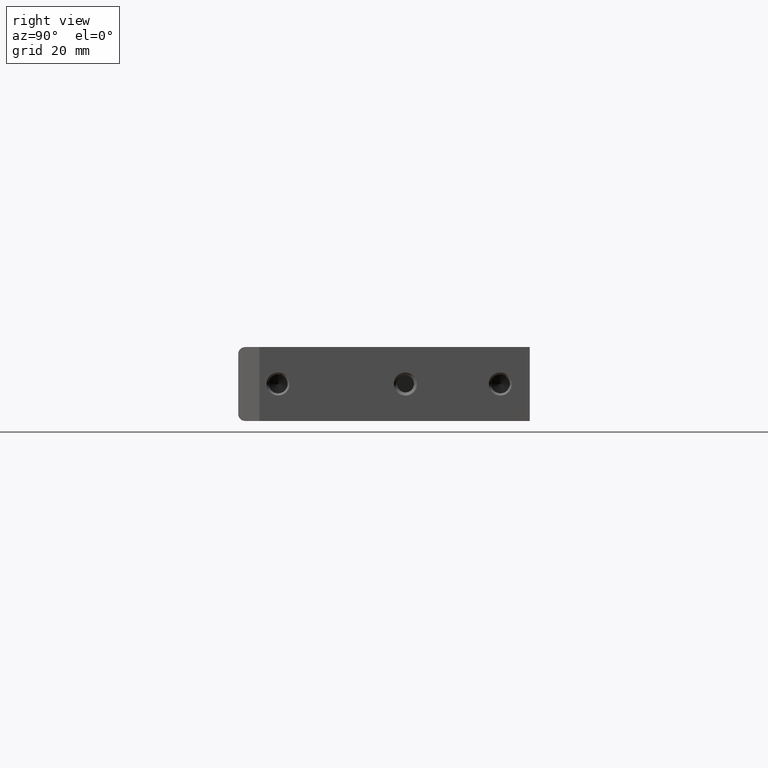
[diagram: clean part render]
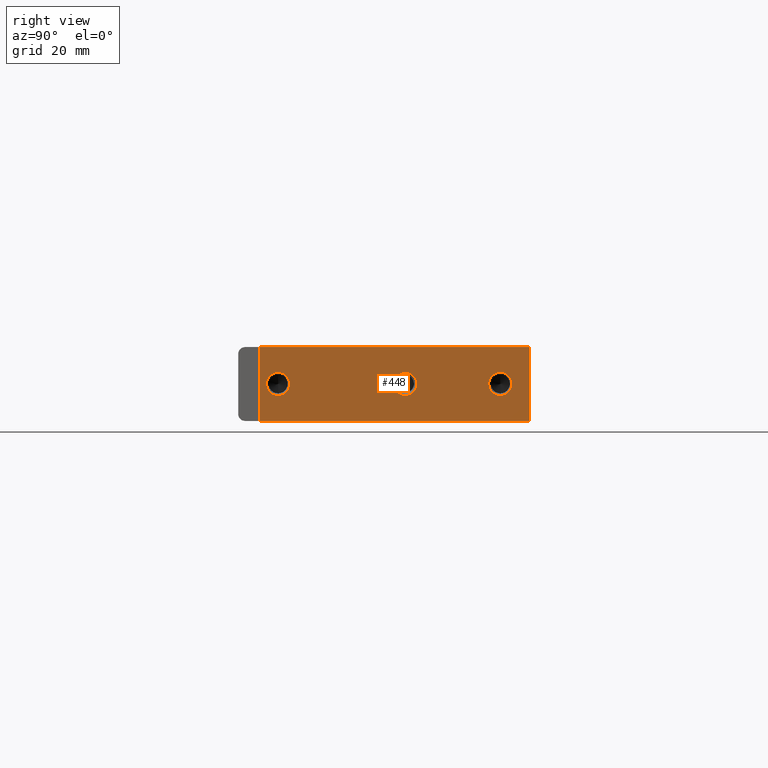
[diagram: same view with one face highlighted and labeled with its STEP entity id]
A machine part, right view. The second image highlights one B-rep face of the part: STEP entity #448.
In plain terms, the highlighted planar face has unit normal (-1, -0, 0).
Its self-contained STEP definition (entity closure, byte-faithful):
#4 = EDGE_CURVE ( 'NONE', #605, #116, #726, .T. ) ;
#12 = CARTESIAN_POINT ( 'NONE',  ( 4.469960816887839400E-016, -1.752499999999999900, 0.5000000000000000000 ) ) ;
#28 = EDGE_CURVE ( 'NONE', #937, #605, #29, .T. ) ;
#29 = LINE ( 'NONE', #12, #739 ) ;
#49 = VECTOR ( 'NONE', #679, 39.37007874015748100 ) ;
#54 = CARTESIAN_POINT ( 'NONE',  ( -2.030439682492589500E-016, 1.500000000000000200, 0.1562499999999994700 ) ) ;
#81 = ORIENTED_EDGE ( 'NONE', *, *, #269, .F. ) ;
#87 = CARTESIAN_POINT ( 'NONE',  ( 0.0000000000000000000, 1.897500000000000000, 0.5000000000000000000 ) ) ;
#94 = AXIS2_PLACEMENT_3D ( 'NONE', #473, #393, #484 ) ;
#104 = CARTESIAN_POINT ( 'NONE',  ( -2.793251185537960200E-017, 0.2179999999999996900, -0.1562500000000003900 ) ) ;
#116 = VERTEX_POINT ( 'NONE', #184 ) ;
#129 = EDGE_LOOP ( 'NONE', ( #237, #403 ) ) ;
#135 = CIRCLE ( 'NONE', #954, 0.1562500000000000000 ) ;
#148 = DIRECTION ( 'NONE',  ( -0.0000000000000000000, -0.0000000000000000000, -1.000000000000000000 ) ) ;
#149 = CARTESIAN_POINT ( 'NONE',  ( 0.0000000000000000000, 1.897500000000000000, 0.5000000000000000000 ) ) ;
#168 = PLANE ( 'NONE',  #727 ) ;
#174 = DIRECTION ( 'NONE',  ( -1.000000000000000000, -1.224646799147353500E-016, 0.0000000000000000000 ) ) ;
#180 = DIRECTION ( 'NONE',  ( 1.224646799147353500E-016, -1.000000000000000000, 0.0000000000000000000 ) ) ;
#184 = CARTESIAN_POINT ( 'NONE',  ( 0.0000000000000000000, 1.897500000000000000, -0.5000000000000000000 ) ) ;
#197 = CARTESIAN_POINT ( 'NONE',  ( -2.793251185537960200E-017, 0.2179999999999996900, -3.670920741486353600E-016 ) ) ;
#206 = EDGE_CURVE ( 'NONE', #488, #355, #906, .T. ) ;
#211 = DIRECTION ( 'NONE',  ( 1.000000000000000000, -0.0000000000000000000, -0.0000000000000000000 ) ) ;
#217 = DIRECTION ( 'NONE',  ( 0.0000000000000000000, 0.0000000000000000000, -1.000000000000000000 ) ) ;
#231 = ORIENTED_EDGE ( 'NONE', *, *, #696, .F. ) ;
#237 = ORIENTED_EDGE ( 'NONE', *, *, #206, .F. ) ;
#269 = EDGE_CURVE ( 'NONE', #301, #510, #950, .T. ) ;
#279 = DIRECTION ( 'NONE',  ( 1.000000000000000000, -0.0000000000000000000, -0.0000000000000000000 ) ) ;
#288 = DIRECTION ( 'NONE',  ( 0.0000000000000000000, 0.0000000000000000000, -1.000000000000000000 ) ) ;
#292 = CARTESIAN_POINT ( 'NONE',  ( 0.0000000000000000000, 1.897500000000000000, -0.5000000000000000000 ) ) ;
#301 = VERTEX_POINT ( 'NONE', #425 ) ;
#324 = CARTESIAN_POINT ( 'NONE',  ( -2.030439682492589500E-016, 1.500000000000000200, -0.1562500000000005600 ) ) ;
#346 = EDGE_LOOP ( 'NONE', ( #513, #708, #231, #773 ) ) ;
#349 = CARTESIAN_POINT ( 'NONE',  ( -2.793251185537960200E-017, 0.2179999999999997200, 0.1562499999999996400 ) ) ;
#355 = VERTEX_POINT ( 'NONE', #54 ) ;
#362 = CARTESIAN_POINT ( 'NONE',  ( 2.067332308003806100E-016, -1.500000000000000400, -0.1562500000000003600 ) ) ;
#363 = VERTEX_POINT ( 'NONE', #87 ) ;
#383 = EDGE_LOOP ( 'NONE', ( #887, #417 ) ) ;
#390 = VERTEX_POINT ( 'NONE', #104 ) ;
#393 = DIRECTION ( 'NONE',  ( 1.000000000000000000, -0.0000000000000000000, -0.0000000000000000000 ) ) ;
#403 = ORIENTED_EDGE ( 'NONE', *, *, #1019, .F. ) ;
#417 = ORIENTED_EDGE ( 'NONE', *, *, #792, .F. ) ;
#425 = CARTESIAN_POINT ( 'NONE',  ( 2.067332308003806100E-016, -1.500000000000000400, 0.1562499999999996700 ) ) ;
#448 = ADVANCED_FACE ( 'NONE', ( #722, #715, #721, #1012 ), #168, .F. ) ;
#453 = EDGE_CURVE ( 'NONE', #390, #490, #724, .T. ) ;
#473 = CARTESIAN_POINT ( 'NONE',  ( 2.067332308003806100E-016, -1.500000000000000400, -3.414809992080329000E-016 ) ) ;
#476 = AXIS2_PLACEMENT_3D ( 'NONE', #990, #980, #991 ) ;
#484 = DIRECTION ( 'NONE',  ( 0.0000000000000000000, 0.0000000000000000000, -1.000000000000000000 ) ) ;
#488 = VERTEX_POINT ( 'NONE', #324 ) ;
#490 = VERTEX_POINT ( 'NONE', #349 ) ;
#510 = VERTEX_POINT ( 'NONE', #362 ) ;
#513 = ORIENTED_EDGE ( 'NONE', *, *, #4, .T. ) ;
#544 = CIRCLE ( 'NONE', #751, 0.1562500000000000000 ) ;
#576 = EDGE_CURVE ( 'NONE', #510, #301, #544, .T. ) ;
#586 = VECTOR ( 'NONE', #856, 39.37007874015748100 ) ;
#605 = VERTEX_POINT ( 'NONE', #728 ) ;
#652 = VECTOR ( 'NONE', #148, 39.37007874015748100 ) ;
#664 = LINE ( 'NONE', #1104, #652 ) ;
#679 = DIRECTION ( 'NONE',  ( -1.224646799147353500E-016, 1.000000000000000000, -0.0000000000000000000 ) ) ;
#688 = CARTESIAN_POINT ( 'NONE',  ( 4.469960816887839400E-016, -1.752499999999999900, 0.5000000000000000000 ) ) ;
#693 = CARTESIAN_POINT ( 'NONE',  ( 2.067332308003806100E-016, -1.500000000000000400, -3.414809992080329000E-016 ) ) ;
#696 = EDGE_CURVE ( 'NONE', #937, #363, #866, .T. ) ;
#702 = DIRECTION ( 'NONE',  ( 1.000000000000000000, -0.0000000000000000000, -0.0000000000000000000 ) ) ;
#704 = DIRECTION ( 'NONE',  ( 0.0000000000000000000, 0.0000000000000000000, -1.000000000000000000 ) ) ;
#708 = ORIENTED_EDGE ( 'NONE', *, *, #958, .F. ) ;
#715 = FACE_BOUND ( 'NONE', #383, .T. ) ;
#721 = FACE_BOUND ( 'NONE', #129, .T. ) ;
#722 = FACE_BOUND ( 'NONE', #947, .T. ) ;
#724 = CIRCLE ( 'NONE', #842, 0.1562500000000000000 ) ;
#726 = LINE ( 'NONE', #292, #49 ) ;
#727 = AXIS2_PLACEMENT_3D ( 'NONE', #149, #174, #180 ) ;
#728 = CARTESIAN_POINT ( 'NONE',  ( 4.469960816887839400E-016, -1.752499999999999900, -0.5000000000000000000 ) ) ;
#739 = VECTOR ( 'NONE', #1042, 39.37007874015748100 ) ;
#751 = AXIS2_PLACEMENT_3D ( 'NONE', #693, #702, #704 ) ;
#773 = ORIENTED_EDGE ( 'NONE', *, *, #28, .T. ) ;
#792 = EDGE_CURVE ( 'NONE', #490, #390, #1088, .T. ) ;
#842 = AXIS2_PLACEMENT_3D ( 'NONE', #197, #211, #217 ) ;
#847 = CARTESIAN_POINT ( 'NONE',  ( -2.030439682492589500E-016, 1.500000000000000200, -5.292955487724510400E-016 ) ) ;
#856 = DIRECTION ( 'NONE',  ( -1.224646799147353500E-016, 1.000000000000000000, -0.0000000000000000000 ) ) ;
#863 = CARTESIAN_POINT ( 'NONE',  ( 0.0000000000000000000, 1.897500000000000000, 0.5000000000000000000 ) ) ;
#866 = LINE ( 'NONE', #863, #586 ) ;
#887 = ORIENTED_EDGE ( 'NONE', *, *, #453, .F. ) ;
#906 = CIRCLE ( 'NONE', #1080, 0.1562500000000000000 ) ;
#937 = VERTEX_POINT ( 'NONE', #688 ) ;
#947 = EDGE_LOOP ( 'NONE', ( #1074, #81 ) ) ;
#950 = CIRCLE ( 'NONE', #94, 0.1562500000000000000 ) ;
#954 = AXIS2_PLACEMENT_3D ( 'NONE', #987, #998, #1061 ) ;
#958 = EDGE_CURVE ( 'NONE', #363, #116, #664, .T. ) ;
#980 = DIRECTION ( 'NONE',  ( 1.000000000000000000, -0.0000000000000000000, -0.0000000000000000000 ) ) ;
#987 = CARTESIAN_POINT ( 'NONE',  ( -2.030439682492589500E-016, 1.500000000000000200, -5.292955487724510400E-016 ) ) ;
#990 = CARTESIAN_POINT ( 'NONE',  ( -2.793251185537960200E-017, 0.2179999999999996900, -3.670920741486353600E-016 ) ) ;
#991 = DIRECTION ( 'NONE',  ( 0.0000000000000000000, 0.0000000000000000000, -1.000000000000000000 ) ) ;
#998 = DIRECTION ( 'NONE',  ( 1.000000000000000000, -0.0000000000000000000, -0.0000000000000000000 ) ) ;
#1012 = FACE_OUTER_BOUND ( 'NONE', #346, .T. ) ;
#1019 = EDGE_CURVE ( 'NONE', #355, #488, #135, .T. ) ;
#1042 = DIRECTION ( 'NONE',  ( -0.0000000000000000000, -0.0000000000000000000, -1.000000000000000000 ) ) ;
#1061 = DIRECTION ( 'NONE',  ( 0.0000000000000000000, 0.0000000000000000000, -1.000000000000000000 ) ) ;
#1074 = ORIENTED_EDGE ( 'NONE', *, *, #576, .F. ) ;
#1080 = AXIS2_PLACEMENT_3D ( 'NONE', #847, #279, #288 ) ;
#1088 = CIRCLE ( 'NONE', #476, 0.1562500000000000000 ) ;
#1104 = CARTESIAN_POINT ( 'NONE',  ( 0.0000000000000000000, 1.897500000000000000, 0.5000000000000000000 ) ) ;